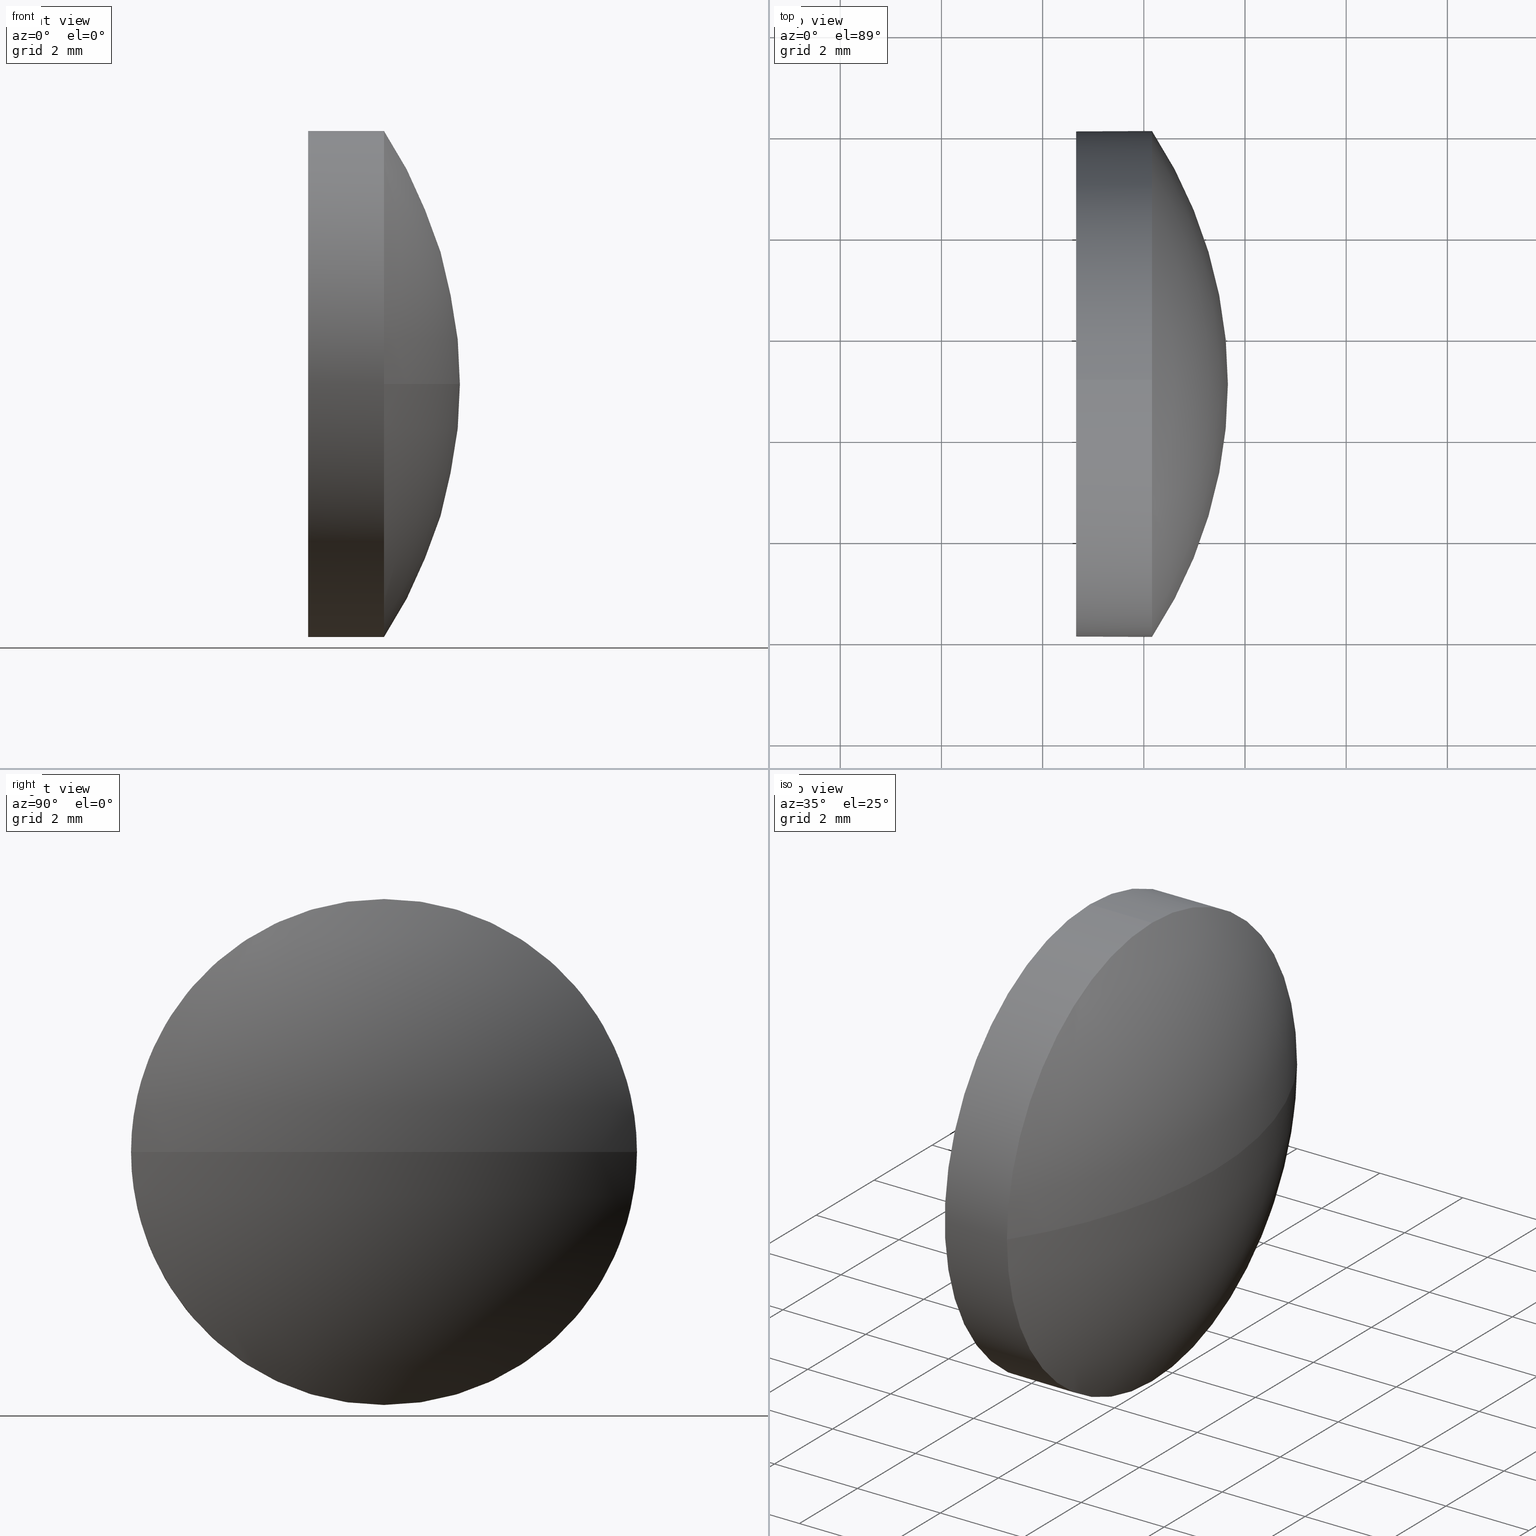
[diagram: canonical four-view strip — front | top / right | iso, engineering-drawing reading convention]
A machine part, canonical four-view strip (front | top / right | iso — engineering-drawing reading convention). The complete STEP part file that produces these views, byte-faithful:
ISO-10303-21;
HEADER;
FILE_DESCRIPTION (( 'STEP AP214' ),
    '1' );
FILE_NAME ('100359.STEP',
    '2019-06-04T01:44:36',
    ( '' ),
    ( '' ),
    'SwSTEP 2.0',
    'SolidWorks 2016',
    '' );
FILE_SCHEMA (( 'AUTOMOTIVE_DESIGN' ));
ENDSEC;

DATA;
#1 = ADVANCED_FACE ( 'NONE', ( #119 ), #17, .T. ) ;
#2 =( GEOMETRIC_REPRESENTATION_CONTEXT ( 3 ) GLOBAL_UNCERTAINTY_ASSIGNED_CONTEXT ( ( #54 ) ) GLOBAL_UNIT_ASSIGNED_CONTEXT ( ( #118, #173, #29 ) ) REPRESENTATION_CONTEXT ( 'NONE', 'WORKASPACE' ) );
#3 = VERTEX_POINT ( 'NONE', #169 ) ;
#4 = ORIENTED_EDGE ( 'NONE', *, *, #5, .T. ) ;
#5 = EDGE_CURVE ( 'NONE', #10, #69, #81, .T. ) ;
#6 = FILL_AREA_STYLE ('',( #90 ) ) ;
#7 = SURFACE_SIDE_STYLE ('',( #176 ) ) ;
#8 = ORIENTED_EDGE ( 'NONE', *, *, #56, .T. ) ;
#9 = DIRECTION ( 'NONE',  ( -1.000000000000000000, -0.0000000000000000000, -0.0000000000000000000 ) ) ;
#10 = VERTEX_POINT ( 'NONE', #103 ) ;
#11 = AXIS2_PLACEMENT_3D ( 'NONE', #77, #184, #106 ) ;
#12 = APPLICATION_CONTEXT ( 'automotive_design' ) ;
#13 = PRODUCT_DEFINITION_CONTEXT ( 'detailed design', #12, 'design' ) ;
#14 = PLANE ( 'NONE',  #11 ) ;
#15 = CARTESIAN_POINT ( 'NONE',  ( 364.6618154651758900, 37.06401895449352000, 0.0000000000000000000 ) ) ;
#16 = AXIS2_PLACEMENT_3D ( 'NONE', #104, #153, #181 ) ;
#17 = SPHERICAL_SURFACE ( 'NONE', #98, 9.083333333333387200 ) ;
#18 = ORIENTED_EDGE ( 'NONE', *, *, #180, .F. ) ;
#19 =( GEOMETRIC_REPRESENTATION_CONTEXT ( 3 ) GLOBAL_UNCERTAINTY_ASSIGNED_CONTEXT ( ( #84 ) ) GLOBAL_UNIT_ASSIGNED_CONTEXT ( ( #44, #41, #75 ) ) REPRESENTATION_CONTEXT ( 'NONE', 'WORKASPACE' ) );
#20 = EDGE_CURVE ( 'NONE', #10, #61, #177, .T. ) ;
#21 = PRODUCT_DEFINITION_SHAPE ( 'NONE', 'NONE',  #135 ) ;
#22 = CARTESIAN_POINT ( 'NONE',  ( 366.1618154651758900, 37.06401895449352000, 0.0000000000000000000 ) ) ;
#23 = SURFACE_STYLE_FILL_AREA ( #42 ) ;
#24 = CARTESIAN_POINT ( 'NONE',  ( 366.1618154651758900, 32.06401895449350500, -6.123233995736766300E-016 ) ) ;
#25 = DIRECTION ( 'NONE',  ( 0.0000000000000000000, 1.000000000000000000, 1.224646799147353500E-016 ) ) ;
#26 = SURFACE_STYLE_USAGE ( .BOTH. , #7 ) ;
#27 = FACE_OUTER_BOUND ( 'NONE', #46, .T. ) ;
#28 = DIRECTION ( 'NONE',  ( -1.000000000000000000, -0.0000000000000000000, -0.0000000000000000000 ) ) ;
#29 =( NAMED_UNIT ( * ) SI_UNIT ( $, .STERADIAN. ) SOLID_ANGLE_UNIT ( ) );
#30 = SHAPE_DEFINITION_REPRESENTATION ( #21, #114 ) ;
#31 = SURFACE_SIDE_STYLE ('',( #23 ) ) ;
#32 = CARTESIAN_POINT ( 'NONE',  ( 364.6618154651758900, 37.06401895449352000, -4.999999999999997300 ) ) ;
#33 = ORIENTED_EDGE ( 'NONE', *, *, #36, .T. ) ;
#34 = EDGE_CURVE ( 'NONE', #3, #149, #182, .T. ) ;
#35 = CYLINDRICAL_SURFACE ( 'NONE', #95, 4.999999999999997300 ) ;
#36 = EDGE_CURVE ( 'NONE', #149, #99, #89, .T. ) ;
#37 = ORIENTED_EDGE ( 'NONE', *, *, #20, .F. ) ;
#38 = CIRCLE ( 'NONE', #165, 4.999999999999997300 ) ;
#39 = CIRCLE ( 'NONE', #108, 4.999999999999997300 ) ;
#40 =( LENGTH_UNIT ( ) NAMED_UNIT ( * ) SI_UNIT ( .MILLI., .METRE. ) );
#41 =( NAMED_UNIT ( * ) PLANE_ANGLE_UNIT ( ) SI_UNIT ( $, .RADIAN. ) );
#42 = FILL_AREA_STYLE ('',( #66 ) ) ;
#43 = CARTESIAN_POINT ( 'NONE',  ( 366.1618154651758900, 37.06401895449352000, 4.999999999999997300 ) ) ;
#44 =( LENGTH_UNIT ( ) NAMED_UNIT ( * ) SI_UNIT ( .MILLI., .METRE. ) );
#45 = CARTESIAN_POINT ( 'NONE',  ( 363.5195857727315500, 37.06401895449352000, 0.0000000000000000000 ) ) ;
#46 = EDGE_LOOP ( 'NONE', ( #132, #8, #168, #162, #122 ) ) ;
#47 = AXIS2_PLACEMENT_3D ( 'NONE', #117, #28, #154 ) ;
#48 = CLOSED_SHELL ( 'NONE', ( #163, #68, #1, #133, #185 ) ) ;
#49 = AXIS2_PLACEMENT_3D ( 'NONE', #22, #178, #101 ) ;
#50 = LINE ( 'NONE', #59, #175 ) ;
#51 = COLOUR_RGB ( '',1.000000000000000000, 1.000000000000000000, 1.000000000000000000 ) ;
#52 = ORIENTED_EDGE ( 'NONE', *, *, #80, .F. ) ;
#53 = EDGE_CURVE ( 'NONE', #86, #69, #164, .T. ) ;
#54 = UNCERTAINTY_MEASURE_WITH_UNIT (LENGTH_MEASURE( 1.000000000000000100E-005 ), #118, 'distance_accuracy_value', 'NONE');
#55 = FACE_OUTER_BOUND ( 'NONE', #105, .T. ) ;
#56 = EDGE_CURVE ( 'NONE', #3, #61, #39, .T. ) ;
#57 =( NAMED_UNIT ( * ) PLANE_ANGLE_UNIT ( ) SI_UNIT ( $, .RADIAN. ) );
#58 = MANIFOLD_SOLID_BREP ( '��ת1', #48 ) ;
#59 = CARTESIAN_POINT ( 'NONE',  ( 363.5195857727315500, 37.06401895449352000, 4.999999999999997300 ) ) ;
#60 = STYLED_ITEM ( 'NONE', ( #141 ), #58 ) ;
#61 = VERTEX_POINT ( 'NONE', #24 ) ;
#62 = CARTESIAN_POINT ( 'NONE',  ( 366.1618154651758900, 37.06401895449352000, 0.0000000000000000000 ) ) ;
#63 = CARTESIAN_POINT ( 'NONE',  ( 364.6618154651758900, 37.06401895449352000, 4.999999999999997300 ) ) ;
#64 = PRODUCT_RELATED_PRODUCT_CATEGORY ( 'part', '', ( #138 ) ) ;
#65 = DIRECTION ( 'NONE',  ( 0.0000000000000000000, 1.000000000000000000, 0.0000000000000000000 ) ) ;
#66 = FILL_AREA_STYLE_COLOUR ( '', #150 ) ;
#67 = DIRECTION ( 'NONE',  ( 0.0000000000000000000, 0.0000000000000000000, 1.000000000000000000 ) ) ;
#68 = ADVANCED_FACE ( 'NONE', ( #55 ), #85, .T. ) ;
#69 = VERTEX_POINT ( 'NONE', #161 ) ;
#70 = EDGE_CURVE ( 'NONE', #86, #99, #50, .T. ) ;
#71 = CIRCLE ( 'NONE', #83, 4.999999999999997300 ) ;
#72 = CARTESIAN_POINT ( 'NONE',  ( 358.5784821318425200, 37.06401895449350500, 0.0000000000000000000 ) ) ;
#73 = MECHANICAL_DESIGN_GEOMETRIC_PRESENTATION_REPRESENTATION (  '', ( #60 ), #92 ) ;
#74 = CARTESIAN_POINT ( 'NONE',  ( 358.5784821318425200, 37.06401895449350500, 0.0000000000000000000 ) ) ;
#75 =( NAMED_UNIT ( * ) SI_UNIT ( $, .STERADIAN. ) SOLID_ANGLE_UNIT ( ) );
#76 = CIRCLE ( 'NONE', #144, 4.999999999999997300 ) ;
#77 = CARTESIAN_POINT ( 'NONE',  ( 364.6618154651758900, 37.06401895449352000, 0.0000000000000000000 ) ) ;
#78 = ORIENTED_EDGE ( 'NONE', *, *, #56, .F. ) ;
#79 = PRODUCT_DEFINITION_FORMATION_WITH_SPECIFIED_SOURCE ( '�κ�', '', #138, .NOT_KNOWN. ) ;
#80 = EDGE_CURVE ( 'NONE', #61, #86, #76, .T. ) ;
#81 = CIRCLE ( 'NONE', #16, 9.083333333333387200 ) ;
#82 = MECHANICAL_DESIGN_GEOMETRIC_PRESENTATION_REPRESENTATION (  '', ( #110 ), #19 ) ;
#83 = AXIS2_PLACEMENT_3D ( 'NONE', #15, #9, #67 ) ;
#84 = UNCERTAINTY_MEASURE_WITH_UNIT (LENGTH_MEASURE( 1.000000000000000100E-005 ), #44, 'distance_accuracy_value', 'NONE');
#85 = SPHERICAL_SURFACE ( 'NONE', #134, 9.083333333333387200 ) ;
#86 = VERTEX_POINT ( 'NONE', #43 ) ;
#87 = EDGE_LOOP ( 'NONE', ( #37, #4, #167, #52 ) ) ;
#88 = AXIS2_PLACEMENT_3D ( 'NONE', #72, #171, #25 ) ;
#89 = CIRCLE ( 'NONE', #47, 4.999999999999997300 ) ;
#90 = FILL_AREA_STYLE_COLOUR ( '', #51 ) ;
#91 = DIRECTION ( 'NONE',  ( 0.0000000000000000000, 0.0000000000000000000, 1.000000000000000000 ) ) ;
#92 =( GEOMETRIC_REPRESENTATION_CONTEXT ( 3 ) GLOBAL_UNCERTAINTY_ASSIGNED_CONTEXT ( ( #136 ) ) GLOBAL_UNIT_ASSIGNED_CONTEXT ( ( #40, #57, #155 ) ) REPRESENTATION_CONTEXT ( 'NONE', 'WORKASPACE' ) );
#93 = DIRECTION ( 'NONE',  ( -1.000000000000000000, -0.0000000000000000000, -0.0000000000000000000 ) ) ;
#94 = DIRECTION ( 'NONE',  ( 0.0000000000000000000, 0.0000000000000000000, 1.000000000000000000 ) ) ;
#95 = AXIS2_PLACEMENT_3D ( 'NONE', #45, #129, #94 ) ;
#96 = VECTOR ( 'NONE', #115, 1000.000000000000000 ) ;
#97 = ORIENTED_EDGE ( 'NONE', *, *, #5, .F. ) ;
#98 = AXIS2_PLACEMENT_3D ( 'NONE', #74, #142, #179 ) ;
#99 = VERTEX_POINT ( 'NONE', #63 ) ;
#100 = EDGE_LOOP ( 'NONE', ( #170, #33 ) ) ;
#101 = DIRECTION ( 'NONE',  ( 0.0000000000000000000, 0.0000000000000000000, 1.000000000000000000 ) ) ;
#102 = AXIS2_PLACEMENT_3D ( 'NONE', #131, #148, #158 ) ;
#103 = CARTESIAN_POINT ( 'NONE',  ( 367.6618154651758900, 37.06401895449350500, 0.0000000000000000000 ) ) ;
#104 = CARTESIAN_POINT ( 'NONE',  ( 358.5784821318425200, 37.06401895449350500, 0.0000000000000000000 ) ) ;
#105 = EDGE_LOOP ( 'NONE', ( #97, #124, #78, #18 ) ) ;
#106 = DIRECTION ( 'NONE',  ( 0.0000000000000000000, 0.0000000000000000000, -1.000000000000000000 ) ) ;
#107 = DIRECTION ( 'NONE',  ( 0.0000000000000000000, 0.0000000000000000000, 1.000000000000000000 ) ) ;
#108 = AXIS2_PLACEMENT_3D ( 'NONE', #139, #140, #127 ) ;
#109 = DIRECTION ( 'NONE',  ( -1.000000000000000000, -0.0000000000000000000, -0.0000000000000000000 ) ) ;
#110 = STYLED_ITEM ( 'NONE', ( #160 ), #114 ) ;
#111 = PRESENTATION_LAYER_ASSIGNMENT (  '', '', ( #110 ) ) ;
#112 = PRESENTATION_LAYER_ASSIGNMENT (  '', '', ( #60 ) ) ;
#113 = FACE_OUTER_BOUND ( 'NONE', #100, .T. ) ;
#114 = ADVANCED_BREP_SHAPE_REPRESENTATION ( '100359', ( #58, #166 ), #2 ) ;
#115 = DIRECTION ( 'NONE',  ( -1.000000000000000000, -0.0000000000000000000, -0.0000000000000000000 ) ) ;
#116 = EDGE_LOOP ( 'NONE', ( #125, #128, #186, #152, #151 ) ) ;
#117 = CARTESIAN_POINT ( 'NONE',  ( 364.6618154651758900, 37.06401895449352000, 0.0000000000000000000 ) ) ;
#118 =( LENGTH_UNIT ( ) NAMED_UNIT ( * ) SI_UNIT ( .MILLI., .METRE. ) );
#119 = FACE_OUTER_BOUND ( 'NONE', #87, .T. ) ;
#120 = APPLICATION_PROTOCOL_DEFINITION ( 'draft international standard', 'automotive_design', 1998, #12 ) ;
#121 = APPLICATION_CONTEXT ( 'automotive_design' ) ;
#122 = ORIENTED_EDGE ( 'NONE', *, *, #36, .F. ) ;
#123 = CYLINDRICAL_SURFACE ( 'NONE', #102, 4.999999999999997300 ) ;
#124 = ORIENTED_EDGE ( 'NONE', *, *, #20, .T. ) ;
#125 = ORIENTED_EDGE ( 'NONE', *, *, #180, .T. ) ;
#126 = CARTESIAN_POINT ( 'NONE',  ( 358.5784821318425200, 37.06401895449350500, 0.0000000000000000000 ) ) ;
#127 = DIRECTION ( 'NONE',  ( 0.0000000000000000000, 0.0000000000000000000, 1.000000000000000000 ) ) ;
#128 = ORIENTED_EDGE ( 'NONE', *, *, #34, .T. ) ;
#129 = DIRECTION ( 'NONE',  ( -1.000000000000000000, -0.0000000000000000000, -0.0000000000000000000 ) ) ;
#130 = SURFACE_STYLE_USAGE ( .BOTH. , #31 ) ;
#131 = CARTESIAN_POINT ( 'NONE',  ( 363.5195857727315500, 37.06401895449352000, 0.0000000000000000000 ) ) ;
#132 = ORIENTED_EDGE ( 'NONE', *, *, #34, .F. ) ;
#133 = ADVANCED_FACE ( 'NONE', ( #27 ), #123, .T. ) ;
#134 = AXIS2_PLACEMENT_3D ( 'NONE', #126, #146, #65 ) ;
#135 = PRODUCT_DEFINITION ( 'δ֪', '', #79, #13 ) ;
#136 = UNCERTAINTY_MEASURE_WITH_UNIT (LENGTH_MEASURE( 1.000000000000000100E-005 ), #40, 'distance_accuracy_value', 'NONE');
#137 = FACE_OUTER_BOUND ( 'NONE', #116, .T. ) ;
#138 = PRODUCT ( '100359', '100359', '', ( #143 ) ) ;
#139 = CARTESIAN_POINT ( 'NONE',  ( 366.1618154651758900, 37.06401895449352000, 0.0000000000000000000 ) ) ;
#140 = DIRECTION ( 'NONE',  ( -1.000000000000000000, -0.0000000000000000000, -0.0000000000000000000 ) ) ;
#141 = PRESENTATION_STYLE_ASSIGNMENT (( #26 ) ) ;
#142 = DIRECTION ( 'NONE',  ( -0.0000000000000000000, 0.0000000000000000000, -1.000000000000000000 ) ) ;
#143 = PRODUCT_CONTEXT ( 'NONE', #121, 'mechanical' ) ;
#144 = AXIS2_PLACEMENT_3D ( 'NONE', #62, #183, #107 ) ;
#145 = DIRECTION ( 'NONE',  ( 1.000000000000000000, 0.0000000000000000000, 0.0000000000000000000 ) ) ;
#146 = DIRECTION ( 'NONE',  ( -0.0000000000000000000, 0.0000000000000000000, -1.000000000000000000 ) ) ;
#147 = DIRECTION ( 'NONE',  ( 0.0000000000000000000, 0.0000000000000000000, 1.000000000000000000 ) ) ;
#148 = DIRECTION ( 'NONE',  ( -1.000000000000000000, -0.0000000000000000000, -0.0000000000000000000 ) ) ;
#149 = VERTEX_POINT ( 'NONE', #32 ) ;
#150 = COLOUR_RGB ( '',1.000000000000000000, 1.000000000000000000, 1.000000000000000000 ) ;
#151 = ORIENTED_EDGE ( 'NONE', *, *, #53, .T. ) ;
#152 = ORIENTED_EDGE ( 'NONE', *, *, #70, .F. ) ;
#153 = DIRECTION ( 'NONE',  ( -0.0000000000000000000, 0.0000000000000000000, 1.000000000000000000 ) ) ;
#154 = DIRECTION ( 'NONE',  ( 0.0000000000000000000, 0.0000000000000000000, 1.000000000000000000 ) ) ;
#155 =( NAMED_UNIT ( * ) SI_UNIT ( $, .STERADIAN. ) SOLID_ANGLE_UNIT ( ) );
#156 = CARTESIAN_POINT ( 'NONE',  ( 363.5195857727315500, 37.06401895449352000, -4.999999999999997300 ) ) ;
#157 = CARTESIAN_POINT ( 'NONE',  ( 366.1618154651758900, 37.06401895449352000, 0.0000000000000000000 ) ) ;
#158 = DIRECTION ( 'NONE',  ( 0.0000000000000000000, 0.0000000000000000000, 1.000000000000000000 ) ) ;
#159 = APPLICATION_PROTOCOL_DEFINITION ( 'draft international standard', 'automotive_design', 1998, #121 ) ;
#160 = PRESENTATION_STYLE_ASSIGNMENT (( #130 ) ) ;
#161 = CARTESIAN_POINT ( 'NONE',  ( 366.1618154651758900, 42.06401895449352000, 0.0000000000000000000 ) ) ;
#162 = ORIENTED_EDGE ( 'NONE', *, *, #70, .T. ) ;
#163 = ADVANCED_FACE ( 'NONE', ( #137 ), #35, .T. ) ;
#164 = CIRCLE ( 'NONE', #49, 4.999999999999997300 ) ;
#165 = AXIS2_PLACEMENT_3D ( 'NONE', #157, #109, #91 ) ;
#166 = AXIS2_PLACEMENT_3D ( 'NONE', #172, #147, #145 ) ;
#167 = ORIENTED_EDGE ( 'NONE', *, *, #53, .F. ) ;
#168 = ORIENTED_EDGE ( 'NONE', *, *, #80, .T. ) ;
#169 = CARTESIAN_POINT ( 'NONE',  ( 366.1618154651758900, 37.06401895449352000, -4.999999999999997300 ) ) ;
#170 = ORIENTED_EDGE ( 'NONE', *, *, #174, .T. ) ;
#171 = DIRECTION ( 'NONE',  ( 0.0000000000000000000, 1.224646799147353200E-016, -1.000000000000000000 ) ) ;
#172 = CARTESIAN_POINT ( 'NONE',  ( 0.0000000000000000000, 0.0000000000000000000, 0.0000000000000000000 ) ) ;
#173 =( NAMED_UNIT ( * ) PLANE_ANGLE_UNIT ( ) SI_UNIT ( $, .RADIAN. ) );
#174 = EDGE_CURVE ( 'NONE', #99, #149, #71, .T. ) ;
#175 = VECTOR ( 'NONE', #93, 1000.000000000000000 ) ;
#176 = SURFACE_STYLE_FILL_AREA ( #6 ) ;
#177 = CIRCLE ( 'NONE', #88, 9.083333333333387200 ) ;
#178 = DIRECTION ( 'NONE',  ( -1.000000000000000000, -0.0000000000000000000, -0.0000000000000000000 ) ) ;
#179 = DIRECTION ( 'NONE',  ( 0.0000000000000000000, 1.000000000000000000, 0.0000000000000000000 ) ) ;
#180 = EDGE_CURVE ( 'NONE', #69, #3, #38, .T. ) ;
#181 = DIRECTION ( 'NONE',  ( 1.000000000000000000, 0.0000000000000000000, 0.0000000000000000000 ) ) ;
#182 = LINE ( 'NONE', #156, #96 ) ;
#183 = DIRECTION ( 'NONE',  ( -1.000000000000000000, -0.0000000000000000000, -0.0000000000000000000 ) ) ;
#184 = DIRECTION ( 'NONE',  ( 1.000000000000000000, 0.0000000000000000000, 0.0000000000000000000 ) ) ;
#185 = ADVANCED_FACE ( 'NONE', ( #113 ), #14, .F. ) ;
#186 = ORIENTED_EDGE ( 'NONE', *, *, #174, .F. ) ;
ENDSEC;
END-ISO-10303-21;
